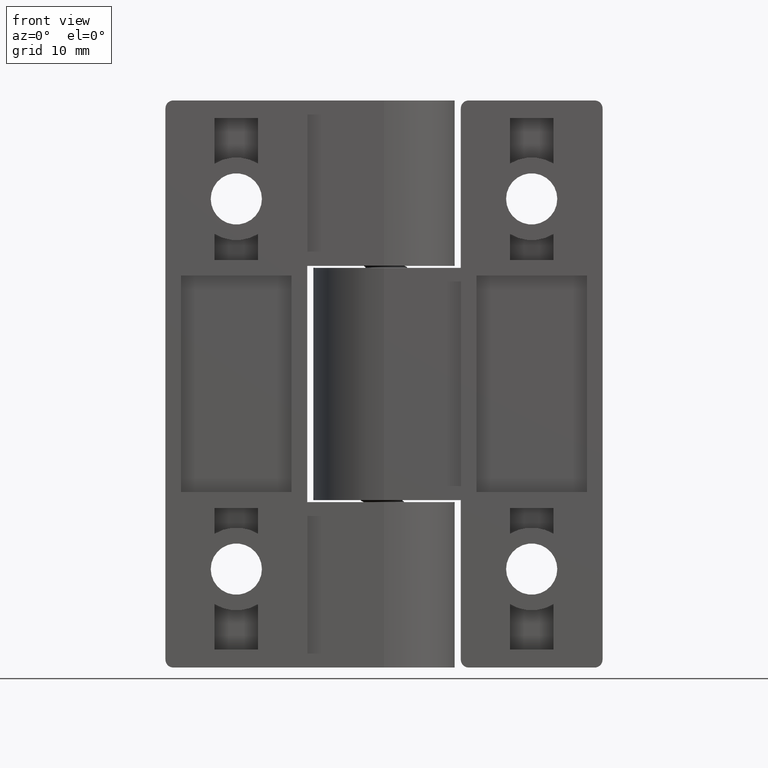
[diagram: clean part render]
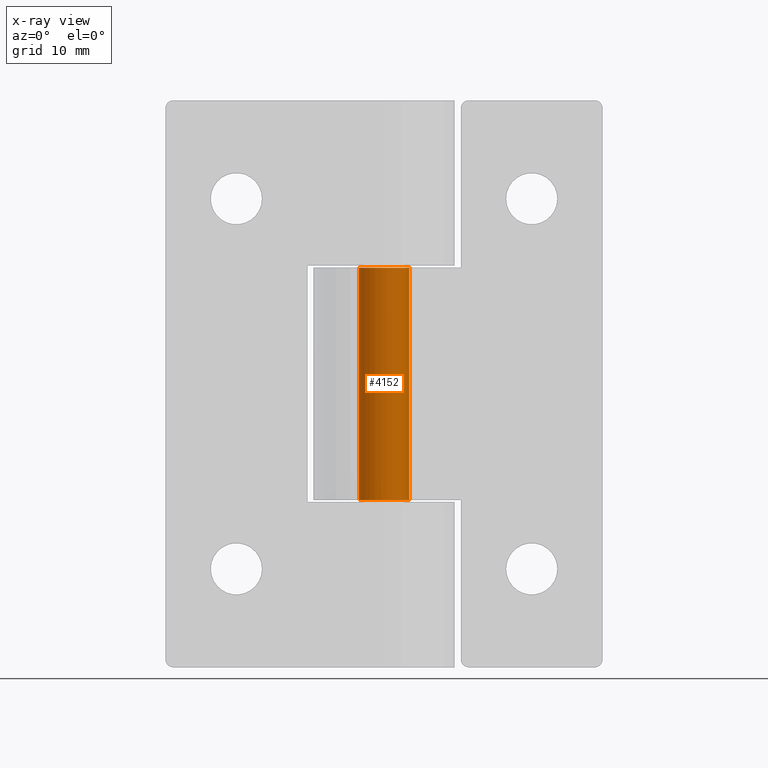
[diagram: x-ray — body ghosted, one internal face saturated and labeled with its STEP entity id]
A machine part, front view, then the same camera in x-ray: the body is ghosted and one INTERNAL B-rep face — a face not visible from any outside direction — is saturated and labeled: STEP entity #4152.
In plain terms, the highlighted cylindrical surface (bore or boss wall) has radius 3.2 mm, axis along (0, -0, 1).
Its self-contained STEP definition (entity closure, byte-faithful):
#170=FACE_BOUND('',#941,.T.);
#718=FACE_OUTER_BOUND('',#940,.T.);
#940=EDGE_LOOP('',(#3927));
#941=EDGE_LOOP('',(#3928));
#1558=CIRCLE('',#4378,3.2);
#1565=CIRCLE('',#4392,3.2);
#2024=VERTEX_POINT('',#37334);
#2034=VERTEX_POINT('',#37371);
#2621=EDGE_CURVE('',#2024,#2024,#1558,.T.);
#2636=EDGE_CURVE('',#2034,#2034,#1565,.T.);
#3927=ORIENTED_EDGE('',*,*,#2636,.T.);
#3928=ORIENTED_EDGE('',*,*,#2621,.T.);
#3975=CYLINDRICAL_SURFACE('',#4431,3.2);
#4152=ADVANCED_FACE('',(#718,#170),#3975,.F.);
#4378=AXIS2_PLACEMENT_3D('',#37335,#5099,#5100);
#4392=AXIS2_PLACEMENT_3D('',#37372,#5134,#5135);
#4431=AXIS2_PLACEMENT_3D('',#37471,#5250,#5251);
#5099=DIRECTION('center_axis',(0.,1.,0.));
#5100=DIRECTION('ref_axis',(1.,0.,0.));
#5134=DIRECTION('center_axis',(0.,-1.,0.));
#5135=DIRECTION('ref_axis',(1.,0.,0.));
#5250=DIRECTION('center_axis',(0.,1.,0.));
#5251=DIRECTION('ref_axis',(1.,0.,0.));
#37334=CARTESIAN_POINT('',(75.8266159227696,14.75,10.));
#37335=CARTESIAN_POINT('Origin',(79.0266159227696,14.75,10.));
#37371=CARTESIAN_POINT('',(75.8266159227696,-14.75,10.));
#37372=CARTESIAN_POINT('Origin',(79.0266159227696,-14.75,10.));
#37471=CARTESIAN_POINT('Origin',(79.0266159227696,0.,10.));